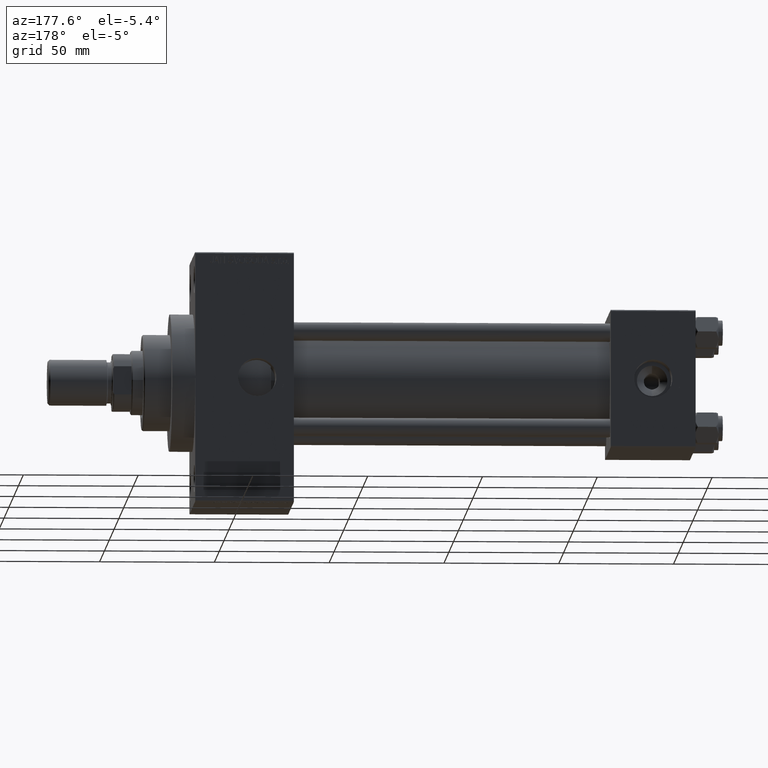
[diagram: clean part render]
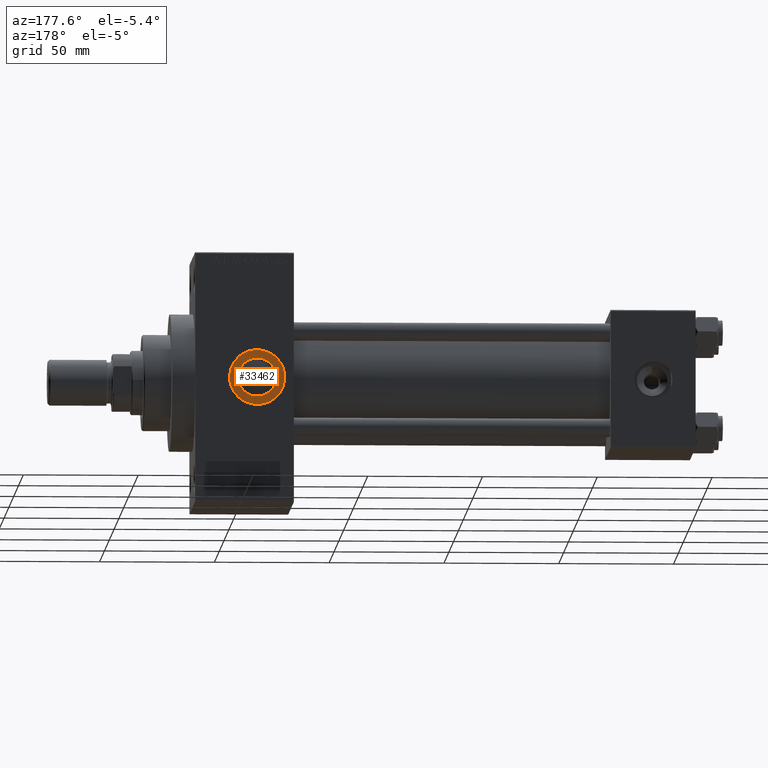
[diagram: same view with one face highlighted and labeled with its STEP entity id]
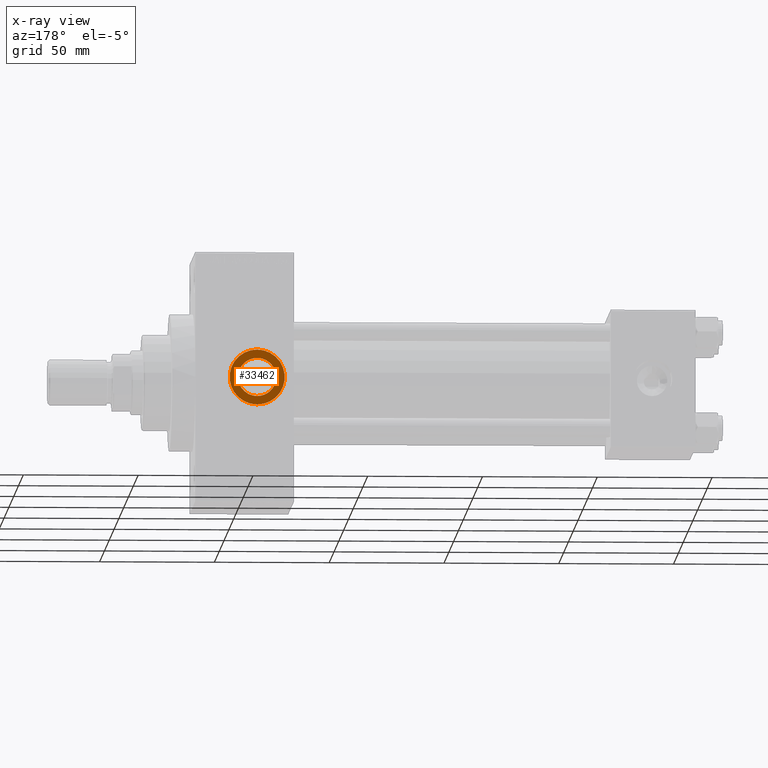
[diagram: x-ray of the same camera — body ghosted, the highlighted face saturated]
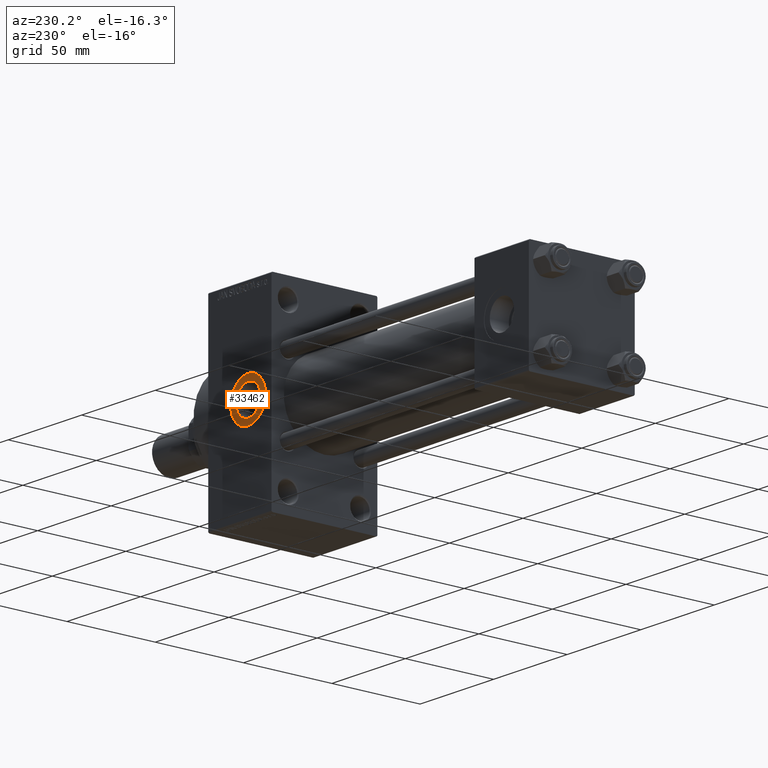
[diagram: same view with one face highlighted and labeled with its STEP entity id]
A machine part, auxiliary view. The second image highlights one B-rep face of the part: STEP entity #33462.
The next image is the same camera in x-ray: the body ghosted, the highlighted face saturated — about 0% of this face is hidden behind the body in this view.
A second angle (auxiliary view) of the same face is appended — the face is thin or edge-on in the first view.
In plain terms, the highlighted planar face has unit normal (0, 1, 0).
Its self-contained STEP definition (entity closure, byte-faithful):
#497 = AXIS2_PLACEMENT_3D ( 'NONE', #43140, #39983, #14174 ) ;
#2352 = AXIS2_PLACEMENT_3D ( 'NONE', #39504, #31794, #18012 ) ;
#3891 = ORIENTED_EDGE ( 'NONE', *, *, #8923, .F. ) ;
#3961 = AXIS2_PLACEMENT_3D ( 'NONE', #15790, #27838, #19856 ) ;
#5454 = VERTEX_POINT ( 'NONE', #34904 ) ;
#8112 = VERTEX_POINT ( 'NONE', #26174 ) ;
#8923 = EDGE_CURVE ( 'NONE', #5454, #22872, #31654, .T. ) ;
#9177 = ORIENTED_EDGE ( 'NONE', *, *, #39554, .T. ) ;
#12005 = DIRECTION ( 'NONE',  ( 0.000000000000000000, 0.000000000000000000, 1.000000000000000000 ) ) ;
#14174 = DIRECTION ( 'NONE',  ( 0.000000000000000000, 0.000000000000000000, 1.000000000000000000 ) ) ;
#14593 = CIRCLE ( 'NONE', #19193, 12.00000000000000533 ) ;
#14669 = EDGE_LOOP ( 'NONE', ( #3891, #39534 ) ) ;
#15790 = CARTESIAN_POINT ( 'NONE',  ( 191.0000000000000000, 29.79999999999999716, 0.000000000000000000 ) ) ;
#16964 = DIRECTION ( 'NONE',  ( 0.000000000000000000, 1.000000000000000000, 0.000000000000000000 ) ) ;
#18012 = DIRECTION ( 'NONE',  ( 0.000000000000000000, 0.000000000000000000, 1.000000000000000000 ) ) ;
#19193 = AXIS2_PLACEMENT_3D ( 'NONE', #45301, #26970, #12005 ) ;
#19856 = DIRECTION ( 'NONE',  ( 0.000000000000000000, 0.000000000000000000, 1.000000000000000000 ) ) ;
#21020 = EDGE_CURVE ( 'NONE', #22872, #5454, #46715, .T. ) ;
#22872 = VERTEX_POINT ( 'NONE', #30768 ) ;
#24433 = PLANE ( 'NONE',  #40068 ) ;
#24669 = FACE_OUTER_BOUND ( 'NONE', #43170, .T. ) ;
#26174 = CARTESIAN_POINT ( 'NONE',  ( 191.0000000000000000, 29.79999999999999716, -12.00000000000000533 ) ) ;
#26970 = DIRECTION ( 'NONE',  ( 0.000000000000000000, 1.000000000000000000, 0.000000000000000000 ) ) ;
#27824 = FACE_BOUND ( 'NONE', #14669, .T. ) ;
#27838 = DIRECTION ( 'NONE',  ( 0.000000000000000000, 1.000000000000000000, 0.000000000000000000 ) ) ;
#27858 = CIRCLE ( 'NONE', #3961, 12.00000000000000533 ) ;
#30018 = CARTESIAN_POINT ( 'NONE',  ( 191.0000000000000000, 29.79999999999999716, 12.00000000000000533 ) ) ;
#30768 = CARTESIAN_POINT ( 'NONE',  ( 191.0000000000000000, 29.79999999999999716, -8.329999999999998295 ) ) ;
#30834 = EDGE_CURVE ( 'NONE', #8112, #34248, #14593, .T. ) ;
#31654 = CIRCLE ( 'NONE', #2352, 8.329999999999998295 ) ;
#31794 = DIRECTION ( 'NONE',  ( 0.000000000000000000, 1.000000000000000000, 0.000000000000000000 ) ) ;
#33462 = ADVANCED_FACE ( 'NONE', ( #27824, #24669 ), #24433, .T. ) ;
#34248 = VERTEX_POINT ( 'NONE', #30018 ) ;
#34904 = CARTESIAN_POINT ( 'NONE',  ( 191.0000000000000000, 29.79999999999999716, 8.329999999999998295 ) ) ;
#39504 = CARTESIAN_POINT ( 'NONE',  ( 191.0000000000000000, 29.79999999999999716, 0.000000000000000000 ) ) ;
#39534 = ORIENTED_EDGE ( 'NONE', *, *, #21020, .F. ) ;
#39554 = EDGE_CURVE ( 'NONE', #34248, #8112, #27858, .T. ) ;
#39983 = DIRECTION ( 'NONE',  ( 0.000000000000000000, 1.000000000000000000, 0.000000000000000000 ) ) ;
#40068 = AXIS2_PLACEMENT_3D ( 'NONE', #40497, #16964, #42531 ) ;
#40497 = CARTESIAN_POINT ( 'NONE',  ( 191.0000000000000000, 29.79999999999999716, 0.000000000000000000 ) ) ;
#42531 = DIRECTION ( 'NONE',  ( 0.000000000000000000, -0.000000000000000000, 1.000000000000000000 ) ) ;
#43140 = CARTESIAN_POINT ( 'NONE',  ( 191.0000000000000000, 29.79999999999999716, 0.000000000000000000 ) ) ;
#43170 = EDGE_LOOP ( 'NONE', ( #9177, #43356 ) ) ;
#43356 = ORIENTED_EDGE ( 'NONE', *, *, #30834, .T. ) ;
#45301 = CARTESIAN_POINT ( 'NONE',  ( 191.0000000000000000, 29.79999999999999716, 0.000000000000000000 ) ) ;
#46715 = CIRCLE ( 'NONE', #497, 8.329999999999998295 ) ;